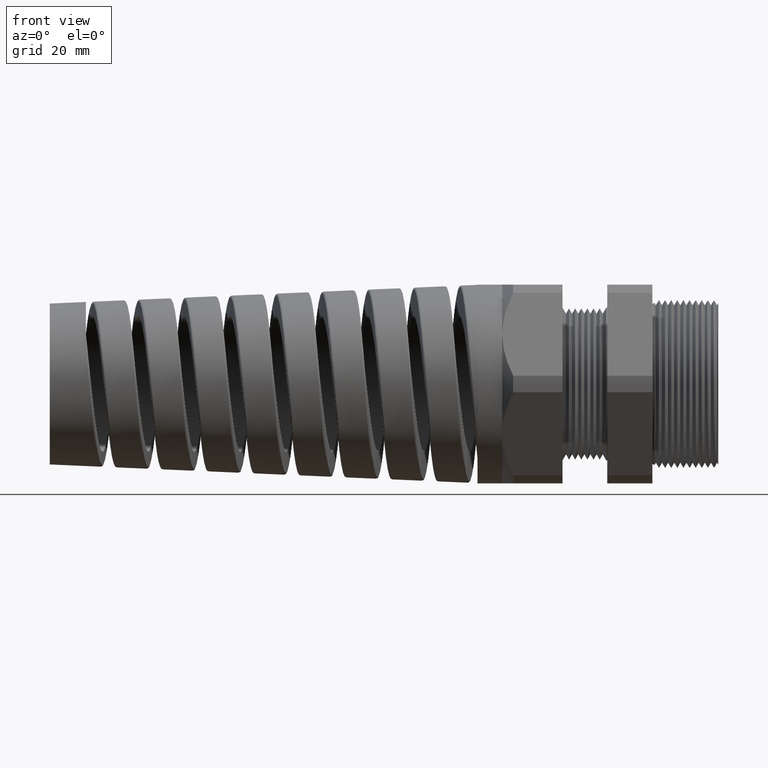
[diagram: clean part render]
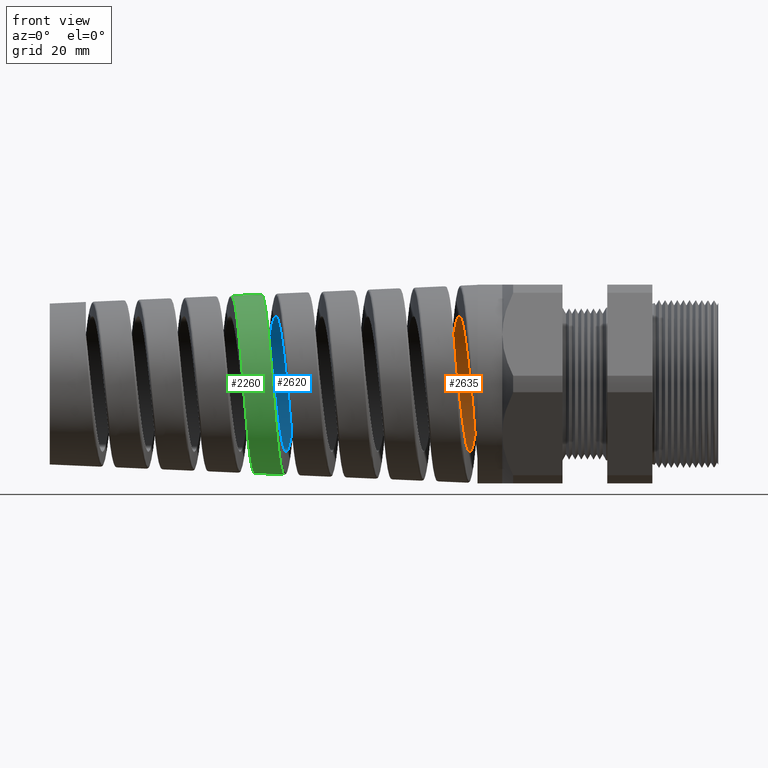
[diagram: same view with three faces highlighted in distinct colors, each labeled with its STEP entity id]
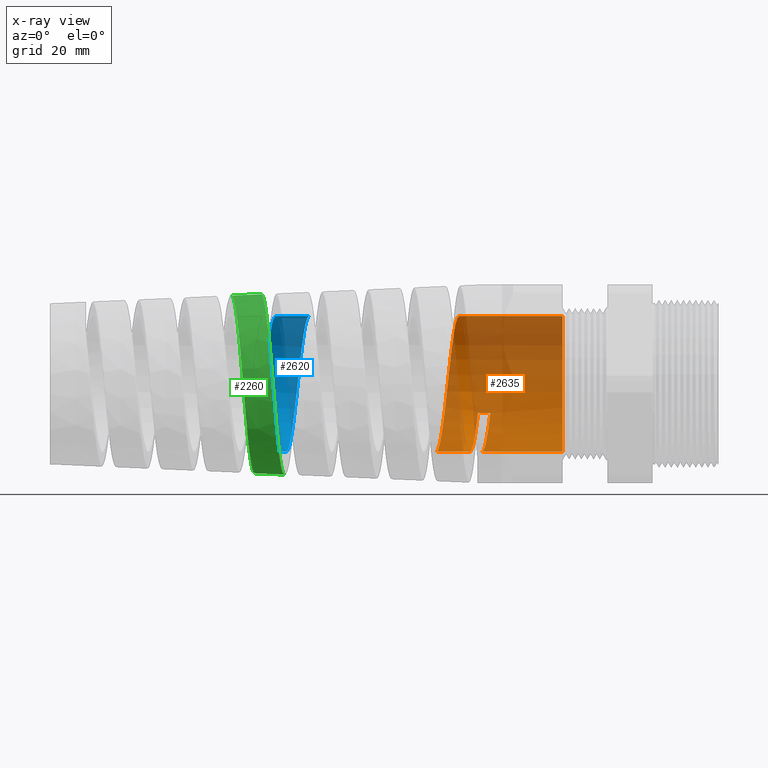
[diagram: x-ray of the same camera — body ghosted, the three highlighted faces saturated]
A machine part, front view with three faces highlighted in distinct colors.
The next image is the same camera in x-ray (body ghosted, the three faces saturated) — at least one of them is partly hidden behind the body in this view.
Their STEP definitions:

[orange] entity #2635 — the highlighted cylindrical surface (partial cylindrical patch) has radius 11.2776 mm, axis along (1, 0, 0).
#39 = ORIENTED_EDGE ( 'NONE', *, *, #1768, .F. ) ;
#44 = VERTEX_POINT ( 'NONE', #1912 ) ;
#96 = ORIENTED_EDGE ( 'NONE', *, *, #2258, .T. ) ;
#1768 = EDGE_CURVE ( 'NONE', #2556, #44, #12890, .T. ) ;
#1912 = CARTESIAN_POINT ( 'NONE',  ( -1.450214128774767900, 0.4008678882953168300, -0.1908950919580003300 ) ) ;
#2212 = EDGE_CURVE ( 'NONE', #10805, #3012, #13148, .T. ) ;
#2213 = ORIENTED_EDGE ( 'NONE', *, *, #10843, .T. ) ;
#2218 = EDGE_CURVE ( 'NONE', #10708, #44, #13175, .T. ) ;
#2219 = ORIENTED_EDGE ( 'NONE', *, *, #2218, .T. ) ;
#2220 = ORIENTED_EDGE ( 'NONE', *, *, #2212, .T. ) ;
#2258 = EDGE_CURVE ( 'NONE', #10693, #10695, #13497, .T. ) ;
#2549 = ORIENTED_EDGE ( 'NONE', *, *, #10879, .T. ) ;
#2556 = VERTEX_POINT ( 'NONE', #13734 ) ;
#2563 = EDGE_CURVE ( 'NONE', #2556, #10809, #13889, .T. ) ;
#2565 = ORIENTED_EDGE ( 'NONE', *, *, #2563, .T. ) ;
#2609 = ORIENTED_EDGE ( 'NONE', *, *, #10793, .F. ) ;
#2626 = EDGE_LOOP ( 'NONE', ( #2609, #2220, #2213, #2219, #39, #2565, #2549, #96 ) ) ;
#2635 = ADVANCED_FACE ( 'NONE', ( #14393 ), #14421, .F. ) ;
#3012 = VERTEX_POINT ( 'NONE', #15225 ) ;
#10693 = VERTEX_POINT ( 'NONE', #15638 ) ;
#10695 = VERTEX_POINT ( 'NONE', #15636 ) ;
#10708 = VERTEX_POINT ( 'NONE', #15635 ) ;
#10793 = EDGE_CURVE ( 'NONE', #10805, #10695, #15634, .T. ) ;
#10805 = VERTEX_POINT ( 'NONE', #15630 ) ;
#10809 = VERTEX_POINT ( 'NONE', #15629 ) ;
#10843 = EDGE_CURVE ( 'NONE', #3012, #10708, #15741, .T. ) ;
#10879 = EDGE_CURVE ( 'NONE', #10809, #10693, #15835, .T. ) ;
#12882 = DIRECTION ( 'NONE',  ( -1.000000000000000000, 0.0000000000000000000, 0.0000000000000000000 ) ) ;
#12883 = VECTOR ( 'NONE', #12882, 39.37007874015748100 ) ;
#12884 = CARTESIAN_POINT ( 'NONE',  ( 0.09602717987635048200, 0.4008678882953167800, -0.1908950919580003300 ) ) ;
#12890 = LINE ( 'NONE', #12884, #12883 ) ;
#13134 = CARTESIAN_POINT ( 'NONE',  ( -1.612520021855103700, 0.3242480722881987400, 0.3036643450278891400 ) ) ;
#13135 = CARTESIAN_POINT ( 'NONE',  ( -1.607814867478654500, 0.2932971590798989500, 0.3346104657224277500 ) ) ;
#13136 = CARTESIAN_POINT ( 'NONE',  ( -1.604718870615752700, 0.2709152607387106400, 0.3529600228726187400 ) ) ;
#13137 = CARTESIAN_POINT ( 'NONE',  ( -1.600046788817570900, 0.2347809175219115500, 0.3771258209529149700 ) ) ;
#13138 = CARTESIAN_POINT ( 'NONE',  ( -1.598484756384663800, 0.2223062251569446500, 0.3846174108148201500 ) ) ;
#13139 = CARTESIAN_POINT ( 'NONE',  ( -1.595335588440577300, 0.1964697569181142700, 0.3984347437937153000 ) ) ;
#13140 = CARTESIAN_POINT ( 'NONE',  ( -1.593766386670960200, 0.1832532842614596500, 0.4046785067326612600 ) ) ;
#13141 = CARTESIAN_POINT ( 'NONE',  ( -1.589087890332173900, 0.1430419444021059100, 0.4213274761484429000 ) ) ;
#13142 = CARTESIAN_POINT ( 'NONE',  ( -1.585992798235615000, 0.1153618666189196300, 0.4297388583966457200 ) ) ;
#13143 = CARTESIAN_POINT ( 'NONE',  ( -1.581298442812024900, 0.07252803293098682200, 0.4382780465761718100 ) ) ;
#13144 = CARTESIAN_POINT ( 'NONE',  ( -1.579717311073812500, 0.05795849378920949600, 0.4404420401640562500 ) ) ;
#13145 = CARTESIAN_POINT ( 'NONE',  ( -1.576584669391930300, 0.02895205415614242000, 0.4432946608141471500 ) ) ;
#13146 = CARTESIAN_POINT ( 'NONE',  ( -1.575027740642945800, 0.01446683099804043200, 0.4439999999999999500 ) ) ;
#13147 = CARTESIAN_POINT ( 'NONE',  ( -1.573472728373935400, -5.053385224217624300E-015, 0.4439999999999998400 ) ) ;
#13148 = B_SPLINE_CURVE_WITH_KNOTS ( 'NONE', 3,
 ( #13147, #13146, #13145, #13144, #13143, #13142, #13141, #13140, #13139, #13138, #13137, #13136, #13135, #13134, #13216, #13215, #13214, #13213, #13212, #13211, #13210, #13209, #13208, #13207, #13206, #13205, #13204, #13203, #13202, #13201, #13200, #13199, #13198, #13197, #13196, #13195, #13194, #13193, #13192, #13191, #13190, #13189, #13188, #13187, #13186, #13185, #13184, #13183, #13182, #13181 ),
 .UNSPECIFIED., .F., .F.,
 ( 4, 2, 2, 2, 2, 2, 2, 2, 1, 2, 2, 2, 2, 2, 2, 2, 2, 2, 2, 1, 2, 2, 2, 2, 2, 4 ),
 ( 0.04818164035617673900, 0.04928998018858565800, 0.05039832002099457800, 0.05261499968581242300, 0.05372333951822134300, 0.05483167935063026900, 0.05704835901544811500, 0.05815669884785703400, 0.05926503868026596100, 0.06037337851267488700, 0.06148171834508381300, 0.06369839800990166600, 0.06480673784231058600, 0.06591507767471950500, 0.06813175733953735800, 0.06924009717194627700, 0.07034843700435519700, 0.07256511666917303500, 0.07367345650158195500, 0.07478179633399087400, 0.07589013616639979400, 0.07699847599880871300, 0.07921515566362655200, 0.08032349549603548500, 0.08143183532844441900, 0.08364851499326225700 ),
 .UNSPECIFIED. ) ;
#13175 = B_SPLINE_CURVE_WITH_KNOTS ( 'NONE', 3,
 ( #13243, #13242, #13241, #13239, #13238, #13237, #13236, #13235, #13234, #13233, #13232, #13231, #13230, #13229, #13228, #13227, #13226, #13225, #13224, #13223 ),
 .UNSPECIFIED., .F., .F.,
 ( 4, 2, 2, 2, 2, 2, 2, 2, 2, 4 ),
 ( 0.5926384102037671700, 0.5942255240878962000, 0.5958126379720252200, 0.5973997518561542400, 0.5989868657402832600, 0.6005739796244122800, 0.6013675365664767900, 0.6021610935085413000, 0.6037482073926703200, 0.6053353212767993400 ),
 .UNSPECIFIED. ) ;
#13181 = CARTESIAN_POINT ( 'NONE',  ( -1.723403743764304400, -1.818386320782775100E-015, -0.4439999999999999500 ) ) ;
#13182 = CARTESIAN_POINT ( 'NONE',  ( -1.720275013297372800, 0.02911065007823212100, -0.4440000000000001700 ) ) ;
#13183 = CARTESIAN_POINT ( 'NONE',  ( -1.717180838819372600, 0.05790025423545364800, -0.4411640161780912000 ) ) ;
#13184 = CARTESIAN_POINT ( 'NONE',  ( -1.712501508010944900, 0.1005979908713707000, -0.4326968643119243900 ) ) ;
#13185 = CARTESIAN_POINT ( 'NONE',  ( -1.710930710600582400, 0.1147913120656879800, -0.4291543034642654200 ) ) ;
#13186 = CARTESIAN_POINT ( 'NONE',  ( -1.707782271011913300, 0.1428207534707584800, -0.4206574543327453700 ) ) ;
#13187 = CARTESIAN_POINT ( 'NONE',  ( -1.706220481874340100, 0.1565161955107908800, -0.4157506338159681600 ) ) ;
#13188 = CARTESIAN_POINT ( 'NONE',  ( -1.701548930619740700, 0.1966727435896103400, -0.3991183631845832100 ) ) ;
#13189 = CARTESIAN_POINT ( 'NONE',  ( -1.698453091462799300, 0.2222127398167272300, -0.3854988694995022400 ) ) ;
#13190 = CARTESIAN_POINT ( 'NONE',  ( -1.693747212036710300, 0.2586270107969952900, -0.3611939081944398100 ) ) ;
#13191 = CARTESIAN_POINT ( 'NONE',  ( -1.692167099646875000, 0.2704469543935691900, -0.3524285797545218000 ) ) ;
#13192 = CARTESIAN_POINT ( 'NONE',  ( -1.689040625948517300, 0.2929277178099528600, -0.3339772613625054400 ) ) ;
#13193 = CARTESIAN_POINT ( 'NONE',  ( -1.685930344130881700, 0.3143889930720742400, -0.3145187440466212800 ) ) ;
#13194 = CARTESIAN_POINT ( 'NONE',  ( -1.682822824818445100, 0.3338421061056913200, -0.2930806891213287300 ) ) ;
#13195 = CARTESIAN_POINT ( 'NONE',  ( -1.679701590504480500, 0.3522778779241365600, -0.2706420862877458300 ) ) ;
#13196 = CARTESIAN_POINT ( 'NONE',  ( -1.678126831901377100, 0.3610242439487603100, -0.2588655724257431500 ) ) ;
#13197 = CARTESIAN_POINT ( 'NONE',  ( -1.673410863485433200, 0.3854030646191135000, -0.2223871286889643500 ) ) ;
#13198 = CARTESIAN_POINT ( 'NONE',  ( -1.670312066571415500, 0.3990372179928460300, -0.1968339565462418900 ) ) ;
#13199 = CARTESIAN_POINT ( 'NONE',  ( -1.665643760140973900, 0.4156746658722902900, -0.1567167798936649800 ) ) ;
#13200 = CARTESIAN_POINT ( 'NONE',  ( -1.664084415851368300, 0.4205803124630142500, -0.1430443413479950700 ) ) ;
#13201 = CARTESIAN_POINT ( 'NONE',  ( -1.660943705093477000, 0.4290747442425225100, -0.1150840852437134100 ) ) ;
#13202 = CARTESIAN_POINT ( 'NONE',  ( -1.659366469435123300, 0.4326432324569228200, -0.1008311862639436200 ) ) ;
#13203 = CARTESIAN_POINT ( 'NONE',  ( -1.654681558629588000, 0.4411428540113433400, -0.05808064403399248300 ) ) ;
#13204 = CARTESIAN_POINT ( 'NONE',  ( -1.651586951895867900, 0.4439848126938398800, -0.02929530691756050000 ) ) ;
#13205 = CARTESIAN_POINT ( 'NONE',  ( -1.646900520632292000, 0.4440075034456812400, 0.01430101784761663100 ) ) ;
#13206 = CARTESIAN_POINT ( 'NONE',  ( -1.645322448249408400, 0.4432937317733018400, 0.02898308221460486200 ) ) ;
#13207 = CARTESIAN_POINT ( 'NONE',  ( -1.642182640002920500, 0.4404303643435934500, 0.05805554106481248400 ) ) ;
#13208 = CARTESIAN_POINT ( 'NONE',  ( -1.640623669476138000, 0.4382930764918801000, 0.07242041768895417200 ) ) ;
#13209 = CARTESIAN_POINT ( 'NONE',  ( -1.635956223389383000, 0.4298212669452323700, 0.1150123022873376500 ) ) ;
#13210 = CARTESIAN_POINT ( 'NONE',  ( -1.632857586827117800, 0.4214463317302423700, 0.1427413835421985600 ) ) ;
#13211 = CARTESIAN_POINT ( 'NONE',  ( -1.628139460101380600, 0.4046639625738920300, 0.1832951326961531900 ) ) ;
#13212 = CARTESIAN_POINT ( 'NONE',  ( -1.626565503125180000, 0.3983923426030306400, 0.1965459313265082700 ) ) ;
#13213 = CARTESIAN_POINT ( 'NONE',  ( -1.623444681950039400, 0.3847020481216760200, 0.2221510655763840000 ) ) ;
#13214 = CARTESIAN_POINT ( 'NONE',  ( -1.620337422880650900, 0.3698174345765944900, 0.2469768601816167400 ) ) ;
#13215 = CARTESIAN_POINT ( 'NONE',  ( -1.617227116027112800, 0.3525729499887939600, 0.2702588956382321900 ) ) ;
#13216 = CARTESIAN_POINT ( 'NONE',  ( -1.614100340259967400, 0.3341292449606022000, 0.2927545104647499300 ) ) ;
#13223 = CARTESIAN_POINT ( 'NONE',  ( -1.450214128774767900, 0.4008678882953168300, -0.1908950919580003300 ) ) ;
#13224 = CARTESIAN_POINT ( 'NONE',  ( -1.452476029716217800, 0.3918285777183655400, -0.2098770851850718400 ) ) ;
#13225 = CARTESIAN_POINT ( 'NONE',  ( -1.454733145878181100, 0.3814550029482889900, -0.2281662052015446000 ) ) ;
#13226 = CARTESIAN_POINT ( 'NONE',  ( -1.459204313388243700, 0.3584791146987841800, -0.2627935706883415800 ) ) ;
#13227 = CARTESIAN_POINT ( 'NONE',  ( -1.461428502098050400, 0.3458383668288905200, -0.2792192801168291200 ) ) ;
#13228 = CARTESIAN_POINT ( 'NONE',  ( -1.464780741570722100, 0.3251511434820982300, -0.3025237668055897300 ) ) ;
#13229 = CARTESIAN_POINT ( 'NONE',  ( -1.465900818263168500, 0.3179666948191628400, -0.3100687921202201500 ) ) ;
#13230 = CARTESIAN_POINT ( 'NONE',  ( -1.468152048315014100, 0.3030080804618621700, -0.3247022913931046900 ) ) ;
#13231 = CARTESIAN_POINT ( 'NONE',  ( -1.469285469054156600, 0.2952159563655750700, -0.3318022386608508500 ) ) ;
#13232 = CARTESIAN_POINT ( 'NONE',  ( -1.472658050947411400, 0.2713124583380514000, -0.3520827968579777200 ) ) ;
#13233 = CARTESIAN_POINT ( 'NONE',  ( -1.474886779980212800, 0.2545708743153743400, -0.3643614797429897700 ) ) ;
#13234 = CARTESIAN_POINT ( 'NONE',  ( -1.479347002152319200, 0.2195187579007095400, -0.3864933801501974100 ) ) ;
#13235 = CARTESIAN_POINT ( 'NONE',  ( -1.481578312756405300, 0.2012082776434165600, -0.3963467145761678200 ) ) ;
#13236 = CARTESIAN_POINT ( 'NONE',  ( -1.486088690587666500, 0.1629684149105667700, -0.4135417571286966700 ) ) ;
#13237 = CARTESIAN_POINT ( 'NONE',  ( -1.488338894605446100, 0.1432805890245423300, -0.4207578420531537000 ) ) ;
#13238 = CARTESIAN_POINT ( 'NONE',  ( -1.492803338261440500, 0.1034176434774275700, -0.4322861087960405700 ) ) ;
#13239 = CARTESIAN_POINT ( 'NONE',  ( -1.495028878360932500, 0.08314819521392857700, -0.4366413705878286500 ) ) ;
#13241 = CARTESIAN_POINT ( 'NONE',  ( -1.499508253801742400, 0.04193111322765522000, -0.4425054695929088700 ) ) ;
#13242 = CARTESIAN_POINT ( 'NONE',  ( -1.501777488994422600, 0.02083813264710891000, -0.4439999999999998400 ) ) ;
#13243 = CARTESIAN_POINT ( 'NONE',  ( -1.504019138133454000, 4.388030839823222900E-015, -0.4440000000000001700 ) ) ;
#13497 = CIRCLE ( 'NONE', #13525, 0.4439999999999999500 ) ;
#13522 = DIRECTION ( 'NONE',  ( 0.0000000000000000000, 0.0000000000000000000, -1.000000000000000000 ) ) ;
#13523 = DIRECTION ( 'NONE',  ( 1.000000000000000000, 0.0000000000000000000, 0.0000000000000000000 ) ) ;
#13524 = CARTESIAN_POINT ( 'NONE',  ( -0.8981889763779525900, 0.0000000000000000000, 0.0000000000000000000 ) ) ;
#13525 = AXIS2_PLACEMENT_3D ( 'NONE', #13524, #13523, #13522 ) ;
#13734 = CARTESIAN_POINT ( 'NONE',  ( -1.369785871225233100, 0.4008678882953167800, -0.1908950919580003300 ) ) ;
#13876 = CARTESIAN_POINT ( 'NONE',  ( -1.392191116335109300, 0.2714440756941466900, -0.3519761612723856200 ) ) ;
#13877 = CARTESIAN_POINT ( 'NONE',  ( -1.387717148026291500, 0.3031772814397465900, -0.3250425208373493600 ) ) ;
#13878 = CARTESIAN_POINT ( 'NONE',  ( -1.385449228546004500, 0.3182951094479965500, -0.3102571036114231700 ) ) ;
#13879 = CARTESIAN_POINT ( 'NONE',  ( -1.378721518563753600, 0.3598300405711323800, -0.2634375259184297800 ) ) ;
#13886 = CARTESIAN_POINT ( 'NONE',  ( -1.374307380194770500, 0.3827819045685269000, -0.2288745393599107800 ) ) ;
#13887 = CARTESIAN_POINT ( 'NONE',  ( -1.369785871225233100, 0.4008678882953167800, -0.1908950919580003300 ) ) ;
#13889 = B_SPLINE_CURVE_WITH_KNOTS ( 'NONE', 3,
 ( #13887, #13886, #13879, #13878, #13877, #13876, #13954, #13953, #13952, #13951, #13950, #13949, #13948, #13947, #13946, #13945, #13944, #13943, #13942, #13941 ),
 .UNSPECIFIED., .F., .F.,
 ( 4, 2, 2, 2, 2, 2, 2, 2, 2, 4 ),
 ( 0.0000000000000000000, 0.003178123135613625900, 0.004767184703420438900, 0.006356246271227251900, 0.007150777055130657500, 0.007945307839034064900, 0.009534369406840874400, 0.01112343097464768400, 0.01191796175855108800, 0.01271249254245449200 ),
 .UNSPECIFIED. ) ;
#13941 = CARTESIAN_POINT ( 'NONE',  ( -1.423540602391710100, 1.155622923469864400E-012, -0.4440000000000001700 ) ) ;
#13942 = CARTESIAN_POINT ( 'NONE',  ( -1.422424148056296500, 0.01038649763750713700, -0.4439999999999732500 ) ) ;
#13943 = CARTESIAN_POINT ( 'NONE',  ( -1.421305404574351200, 0.02079509048912022900, -0.4436360077330351300 ) ) ;
#13944 = CARTESIAN_POINT ( 'NONE',  ( -1.419057635734027000, 0.04165676073585768100, -0.4421651924685526300 ) ) ;
#13945 = CARTESIAN_POINT ( 'NONE',  ( -1.417924766947450000, 0.05214502300986559300, -0.4410514575047869100 ) ) ;
#13946 = CARTESIAN_POINT ( 'NONE',  ( -1.414550885338690300, 0.08322387823493891700, -0.4366322851768073600 ) ) ;
#13947 = CARTESIAN_POINT ( 'NONE',  ( -1.412322978663533800, 0.1035375418656985400, -0.4322567517434992000 ) ) ;
#13948 = CARTESIAN_POINT ( 'NONE',  ( -1.407865399090338300, 0.1433713875686111200, -0.4207262378674326800 ) ) ;
#13949 = CARTESIAN_POINT ( 'NONE',  ( -1.405635723304936400, 0.1628915830611144300, -0.4135713055821908500 ) ) ;
#13950 = CARTESIAN_POINT ( 'NONE',  ( -1.402257836021539900, 0.1915548081490766300, -0.4006900031611080900 ) ) ;
#13951 = CARTESIAN_POINT ( 'NONE',  ( -1.401125600186313300, 0.2010095926081327300, -0.3960306515723440200 ) ) ;
#13952 = CARTESIAN_POINT ( 'NONE',  ( -1.398879981928319300, 0.2194129255442873500, -0.3861387074736225600 ) ) ;
#13953 = CARTESIAN_POINT ( 'NONE',  ( -1.397762087509289500, 0.2284002511153724900, -0.3808898955769230400 ) ) ;
#13954 = CARTESIAN_POINT ( 'NONE',  ( -1.394414572857527200, 0.2547302875876748500, -0.3642521511730018600 ) ) ;
#14393 = FACE_OUTER_BOUND ( 'NONE', #2626, .T. ) ;
#14417 = DIRECTION ( 'NONE',  ( 0.0000000000000000000, 0.0000000000000000000, -1.000000000000000000 ) ) ;
#14418 = DIRECTION ( 'NONE',  ( 1.000000000000000000, 0.0000000000000000000, 0.0000000000000000000 ) ) ;
#14419 = CARTESIAN_POINT ( 'NONE',  ( 0.09602717987635048200, 0.0000000000000000000, 0.0000000000000000000 ) ) ;
#14420 = AXIS2_PLACEMENT_3D ( 'NONE', #14419, #14418, #14417 ) ;
#14421 = CYLINDRICAL_SURFACE ( 'NONE', #14420, 0.4439999999999999500 ) ;
#15225 = CARTESIAN_POINT ( 'NONE',  ( -1.723403743764304400, -1.818386320782775100E-015, -0.4439999999999999500 ) ) ;
#15629 = CARTESIAN_POINT ( 'NONE',  ( -1.423540602391710100, 1.155622923469864400E-012, -0.4440000000000001700 ) ) ;
#15630 = CARTESIAN_POINT ( 'NONE',  ( -1.573472728373935400, -5.053385224217624300E-015, 0.4439999999999998400 ) ) ;
#15631 = DIRECTION ( 'NONE',  ( 1.000000000000000000, 0.0000000000000000000, 0.0000000000000000000 ) ) ;
#15632 = VECTOR ( 'NONE', #15631, 39.37007874015748100 ) ;
#15633 = CARTESIAN_POINT ( 'NONE',  ( 0.09602717987635048200, 5.437431788214247900E-017, 0.4439999999999999500 ) ) ;
#15634 = LINE ( 'NONE', #15633, #15632 ) ;
#15635 = CARTESIAN_POINT ( 'NONE',  ( -1.504019138133454000, 4.388030839823222900E-015, -0.4440000000000001700 ) ) ;
#15636 = CARTESIAN_POINT ( 'NONE',  ( -0.8981889763779525900, 5.437431788214247900E-017, 0.4439999999999999500 ) ) ;
#15638 = CARTESIAN_POINT ( 'NONE',  ( -0.8981889763779525900, 0.0000000000000000000, -0.4439999999999999500 ) ) ;
#15733 = DIRECTION ( 'NONE',  ( 1.000000000000000000, 0.0000000000000000000, 0.0000000000000000000 ) ) ;
#15734 = VECTOR ( 'NONE', #15733, 39.37007874015748100 ) ;
#15735 = CARTESIAN_POINT ( 'NONE',  ( 0.09602717987635048200, 0.0000000000000000000, -0.4439999999999999500 ) ) ;
#15741 = LINE ( 'NONE', #15735, #15734 ) ;
#15832 = DIRECTION ( 'NONE',  ( 1.000000000000000000, 0.0000000000000000000, 0.0000000000000000000 ) ) ;
#15833 = VECTOR ( 'NONE', #15832, 39.37007874015748100 ) ;
#15834 = CARTESIAN_POINT ( 'NONE',  ( 0.09602717987635048200, 0.0000000000000000000, -0.4439999999999999500 ) ) ;
#15835 = LINE ( 'NONE', #15834, #15833 ) ;

[blue] entity #2620 — the highlighted cylindrical surface (partial cylindrical patch) has radius 11.2776 mm, axis along (1, 0, 0).
#2602 = EDGE_LOOP ( 'NONE', ( #2613, #2618, #2617, #2615 ) ) ;
#2613 = ORIENTED_EDGE ( 'NONE', *, *, #2984, .F. ) ;
#2614 = EDGE_CURVE ( 'NONE', #2832, #2856, #14158, .T. ) ;
#2615 = ORIENTED_EDGE ( 'NONE', *, *, #2616, .T. ) ;
#2616 = EDGE_CURVE ( 'NONE', #2953, #2994, #14195, .T. ) ;
#2617 = ORIENTED_EDGE ( 'NONE', *, *, #2881, .T. ) ;
#2618 = ORIENTED_EDGE ( 'NONE', *, *, #2614, .T. ) ;
#2620 = ADVANCED_FACE ( 'NONE', ( #14223 ), #14251, .F. ) ;
#2832 = VERTEX_POINT ( 'NONE', #14810 ) ;
#2856 = VERTEX_POINT ( 'NONE', #14808 ) ;
#2881 = EDGE_CURVE ( 'NONE', #2856, #2953, #14807, .T. ) ;
#2953 = VERTEX_POINT ( 'NONE', #14883 ) ;
#2984 = EDGE_CURVE ( 'NONE', #2832, #2994, #15006, .T. ) ;
#2994 = VERTEX_POINT ( 'NONE', #15022 ) ;
#14114 = CARTESIAN_POINT ( 'NONE',  ( -2.911950232264677800, 0.1006227902081838500, -0.4326903075784466200 ) ) ;
#14115 = CARTESIAN_POINT ( 'NONE',  ( -2.910388467622126600, 0.1147348782574745100, -0.4291692457914926300 ) ) ;
#14116 = CARTESIAN_POINT ( 'NONE',  ( -2.907240985229683400, 0.1427571736584514500, -0.4206788836999628100 ) ) ;
#14117 = CARTESIAN_POINT ( 'NONE',  ( -2.905669740164085600, 0.1565361601518110200, -0.4157439061988609200 ) ) ;
#14118 = CARTESIAN_POINT ( 'NONE',  ( -2.900990910552462100, 0.1967537697442287000, -0.3990817134343284100 ) ) ;
#14119 = CARTESIAN_POINT ( 'NONE',  ( -2.897896911508041700, 0.2222717876811627900, -0.3854585511246246300 ) ) ;
#14120 = CARTESIAN_POINT ( 'NONE',  ( -2.893204417430749000, 0.2585831395146259700, -0.3612236433530869300 ) ) ;
#14121 = CARTESIAN_POINT ( 'NONE',  ( -2.891623184172496000, 0.2704137350003387200, -0.3524556226914586900 ) ) ;
#14122 = CARTESIAN_POINT ( 'NONE',  ( -2.888488639069346100, 0.2929528513334888100, -0.3339568549067921700 ) ) ;
#14123 = CARTESIAN_POINT ( 'NONE',  ( -2.886931267189675000, 0.3036974468377988700, -0.3242116162247657400 ) ) ;
#14124 = CARTESIAN_POINT ( 'NONE',  ( -2.882266208343298600, 0.3343904852214996100, -0.2935238467941230800 ) ) ;
#14125 = CARTESIAN_POINT ( 'NONE',  ( -2.879165970841523600, 0.3528130864717232700, -0.2711432426676441100 ) ) ;
#14126 = CARTESIAN_POINT ( 'NONE',  ( -2.872862673697413900, 0.3854055330618195700, -0.2223922370843087500 ) ) ;
#14127 = CARTESIAN_POINT ( 'NONE',  ( -2.869756090910215600, 0.3990665518643851100, -0.1967709908672625200 ) ) ;
#14128 = CARTESIAN_POINT ( 'NONE',  ( -2.865091638876823500, 0.4156862528314662600, -0.1566849486162847400 ) ) ;
#14129 = CARTESIAN_POINT ( 'NONE',  ( -2.863535269055178300, 0.4205809244104736800, -0.1430380001639315300 ) ) ;
#14130 = CARTESIAN_POINT ( 'NONE',  ( -2.860404133305722400, 0.4290518699492376100, -0.1151636937664303200 ) ) ;
#14131 = CARTESIAN_POINT ( 'NONE',  ( -2.858822927630838300, 0.4326339150854196500, -0.1008761664248833800 ) ) ;
#14132 = CARTESIAN_POINT ( 'NONE',  ( -2.854126796079530700, 0.4411549406590804000, -0.05802361649327145200 ) ) ;
#14133 = CARTESIAN_POINT ( 'NONE',  ( -2.851031637988243400, 0.4439851371566156400, -0.02923215587331994300 ) ) ;
#14134 = CARTESIAN_POINT ( 'NONE',  ( -2.844795720676327000, 0.4440147471686608500, 0.02877890285836243900 ) ) ;
#14135 = CARTESIAN_POINT ( 'NONE',  ( -2.841632183523902500, 0.4411206201798484300, 0.05821276986950265500 ) ) ;
#14136 = CARTESIAN_POINT ( 'NONE',  ( -2.835401565667587100, 0.4298085812940811200, 0.1150682908958981400 ) ) ;
#14137 = CARTESIAN_POINT ( 'NONE',  ( -2.832305909379625200, 0.4214311189317851400, 0.1427668116755586600 ) ) ;
#14138 = CARTESIAN_POINT ( 'NONE',  ( -2.827603154229959800, 0.4047093598569401200, 0.1831910796796908900 ) ) ;
#14139 = CARTESIAN_POINT ( 'NONE',  ( -2.826022360917084300, 0.3984153000601372600, 0.1965017494742697100 ) ) ;
#14140 = CARTESIAN_POINT ( 'NONE',  ( -2.822894700564235700, 0.3846959621402534200, 0.2221636909610625600 ) ) ;
#14141 = CARTESIAN_POINT ( 'NONE',  ( -2.819784117173943700, 0.3697923337429591700, 0.2470143657876365500 ) ) ;
#14142 = CARTESIAN_POINT ( 'NONE',  ( -2.816677210227678300, 0.3525640924514849600, 0.2702687161070845800 ) ) ;
#14143 = CARTESIAN_POINT ( 'NONE',  ( -2.813557361676057400, 0.3341622642169020400, 0.2927152188830375300 ) ) ;
#14144 = CARTESIAN_POINT ( 'NONE',  ( -2.811985170964679300, 0.3243360966280171000, 0.3035726054438143700 ) ) ;
#14145 = CARTESIAN_POINT ( 'NONE',  ( -2.807264745985477400, 0.2932903327788744500, 0.3346247183126695400 ) ) ;
#14146 = CARTESIAN_POINT ( 'NONE',  ( -2.804165858958741700, 0.2708804545958886100, 0.3529838677083986200 ) ) ;
#14147 = CARTESIAN_POINT ( 'NONE',  ( -2.799499416749475800, 0.2347893002429987900, 0.3771199310266125600 ) ) ;
#14148 = CARTESIAN_POINT ( 'NONE',  ( -2.797940965394816200, 0.2223432166150338700, 0.3845940989037502400 ) ) ;
#14149 = CARTESIAN_POINT ( 'NONE',  ( -2.794802689347673000, 0.1965991305891161600, 0.3983690609697383400 ) ) ;
#14150 = CARTESIAN_POINT ( 'NONE',  ( -2.793223736669640600, 0.1833032164012345100, 0.4046569347115516700 ) ) ;
#14151 = CARTESIAN_POINT ( 'NONE',  ( -2.788535829037311200, 0.1430122847549671900, 0.4213415505524127900 ) ) ;
#14152 = CARTESIAN_POINT ( 'NONE',  ( -2.785441400004690800, 0.1153347652869175800, 0.4297413666299996200 ) ) ;
#14153 = CARTESIAN_POINT ( 'NONE',  ( -2.780758415102495600, 0.07260536575498795200, 0.4382640738559191500 ) ) ;
#14154 = CARTESIAN_POINT ( 'NONE',  ( -2.779182555269361200, 0.05808524471522565100, 0.4404268132848689300 ) ) ;
#14155 = CARTESIAN_POINT ( 'NONE',  ( -2.776040361722483600, 0.02899098897484885000, 0.4432935777474704700 ) ) ;
#14156 = CARTESIAN_POINT ( 'NONE',  ( -2.774480485239068100, 0.01447834582893187500, 0.4440000000000018900 ) ) ;
#14157 = CARTESIAN_POINT ( 'NONE',  ( -2.772924235818257500, -6.893994488151984300E-014, 0.4439999999999999500 ) ) ;
#14158 = B_SPLINE_CURVE_WITH_KNOTS ( 'NONE', 3,
 ( #14157, #14156, #14155, #14154, #14153, #14152, #14151, #14150, #14149, #14148, #14147, #14146, #14145, #14144, #14143, #14142, #14141, #14140, #14139, #14138, #14137, #14136, #14135, #14134, #14133, #14132, #14131, #14130, #14129, #14128, #14127, #14126, #14125, #14124, #14123, #14122, #14121, #14120, #14119, #14118, #14117, #14116, #14115, #14114, #14198, #14197, #14196 ),
 .UNSPECIFIED., .F., .F.,
 ( 4, 2, 2, 2, 2, 2, 2, 2, 1, 2, 2, 2, 2, 2, 2, 2, 2, 2, 2, 2, 2, 2, 2, 4 ),
 ( 0.3319018859143124100, 0.3330101689579805800, 0.3341184520016488000, 0.3363350180889851900, 0.3374433011326533600, 0.3385515841763215800, 0.3407681502636579800, 0.3418764333073261400, 0.3429847163509943700, 0.3440929993946625900, 0.3452012824383307600, 0.3474178485256671500, 0.3496344146130036000, 0.3518509807003399900, 0.3529592637440081600, 0.3540675467876763800, 0.3562841128750127700, 0.3585006789623491600, 0.3596089620060173900, 0.3607172450496856100, 0.3629338111370220000, 0.3640420941806901700, 0.3651503772243583900, 0.3673669433116947800 ),
 .UNSPECIFIED. ) ;
#14159 = CARTESIAN_POINT ( 'NONE',  ( -2.602948816809160300, 0.3771977597161854100, 0.2346713480425616200 ) ) ;
#14160 = CARTESIAN_POINT ( 'NONE',  ( -2.604530057369313300, 0.3847627737805067200, 0.2220475059215764900 ) ) ;
#14161 = CARTESIAN_POINT ( 'NONE',  ( -2.607658993697192300, 0.3984682293316552700, 0.1963938827625685300 ) ) ;
#14162 = CARTESIAN_POINT ( 'NONE',  ( -2.609215345062704000, 0.4046564713357158600, 0.1832982303709948200 ) ) ;
#14163 = CARTESIAN_POINT ( 'NONE',  ( -2.612326968034195800, 0.4157257213681332900, 0.1565797740576874700 ) ) ;
#14164 = CARTESIAN_POINT ( 'NONE',  ( -2.613882300289172000, 0.4206067112668738200, 0.1429569698961470300 ) ) ;
#14165 = CARTESIAN_POINT ( 'NONE',  ( -2.617006001567443000, 0.4290458790187950400, 0.1151795750192402000 ) ) ;
#14166 = CARTESIAN_POINT ( 'NONE',  ( -2.618581154874919800, 0.4326158534670245200, 0.1009627822249831200 ) ) ;
#14167 = CARTESIAN_POINT ( 'NONE',  ( -2.623301981986603700, 0.4411764691868119700, 0.05792377144405861500 ) ) ;
#14168 = CARTESIAN_POINT ( 'NONE',  ( -2.626402307393820300, 0.4439900376300773300, 0.02909891705527231300 ) ) ;
#14169 = CARTESIAN_POINT ( 'NONE',  ( -2.631073638623919700, 0.4440049419481679700, -0.01432084661396740600 ) ) ;
#14170 = CARTESIAN_POINT ( 'NONE',  ( -2.632634165653278100, 0.4433039838291916700, -0.02882474148318105200 ) ) ;
#14171 = CARTESIAN_POINT ( 'NONE',  ( -2.635777091062117000, 0.4404515707831862500, -0.05789388218998971900 ) ) ;
#14172 = CARTESIAN_POINT ( 'NONE',  ( -2.637356560364641400, 0.4382930296919369500, -0.07243161478339485400 ) ) ;
#14173 = CARTESIAN_POINT ( 'NONE',  ( -2.642046194412025300, 0.4297830153028609500, -0.1151826138957143800 ) ) ;
#14174 = CARTESIAN_POINT ( 'NONE',  ( -2.645142107439415900, 0.4213920266130631300, -0.1428596540766486100 ) ) ;
#14175 = CARTESIAN_POINT ( 'NONE',  ( -2.649830598825894800, 0.4047344711734259200, -0.1831312044899997300 ) ) ;
#14176 = CARTESIAN_POINT ( 'NONE',  ( -2.651409166573913900, 0.3984604676588563400, -0.1964145501665879600 ) ) ;
#14177 = CARTESIAN_POINT ( 'NONE',  ( -2.654553020095751200, 0.3846874074195460500, -0.2221823988908345200 ) ) ;
#14178 = CARTESIAN_POINT ( 'NONE',  ( -2.656113960150225900, 0.3772151318519509400, -0.2346364400317647900 ) ) ;
#14179 = CARTESIAN_POINT ( 'NONE',  ( -2.660786044842997200, 0.3530902710213444400, -0.2707421638118668900 ) ) ;
#14180 = CARTESIAN_POINT ( 'NONE',  ( -2.663885989332089200, 0.3347457606009394100, -0.2931493722603987200 ) ) ;
#14181 = CARTESIAN_POINT ( 'NONE',  ( -2.668605195280021400, 0.3037383317744659600, -0.3241802669582252700 ) ) ;
#14182 = CARTESIAN_POINT ( 'NONE',  ( -2.670181227415925100, 0.2928685905966669200, -0.3340280983655822300 ) ) ;
#14183 = CARTESIAN_POINT ( 'NONE',  ( -2.673305309488843000, 0.2704215813318506200, -0.3524470885193785600 ) ) ;
#14184 = CARTESIAN_POINT ( 'NONE',  ( -2.676416242971522600, 0.2471717996187487400, -0.3696868774585040900 ) ) ;
#14185 = CARTESIAN_POINT ( 'NONE',  ( -2.679528825385547800, 0.2223381367639918600, -0.3845947779062813300 ) ) ;
#14186 = CARTESIAN_POINT ( 'NONE',  ( -2.682657097081111400, 0.1967008447029917900, -0.3983166679233934900 ) ) ;
#14187 = CARTESIAN_POINT ( 'NONE',  ( -2.684237894688574300, 0.1834034905333150900, -0.4046134880406849800 ) ) ;
#14188 = CARTESIAN_POINT ( 'NONE',  ( -2.688946982181582800, 0.1429612866556684800, -0.4213665040018821900 ) ) ;
#14189 = CARTESIAN_POINT ( 'NONE',  ( -2.692045487960571700, 0.1152635418461172700, -0.4297553681639314500 ) ) ;
#14190 = CARTESIAN_POINT ( 'NONE',  ( -2.696721621821437600, 0.07264549903628612900, -0.4382561712125978000 ) ) ;
#14191 = CARTESIAN_POINT ( 'NONE',  ( -2.698284786795031900, 0.05825962736715528700, -0.4404045863025657900 ) ) ;
#14192 = CARTESIAN_POINT ( 'NONE',  ( -2.701435306973924500, 0.02911803467279313800, -0.4432860519733143300 ) ) ;
#14193 = CARTESIAN_POINT ( 'NONE',  ( -2.703006979492054800, 0.01450782708666742600, -0.4440000000000168300 ) ) ;
#14194 = CARTESIAN_POINT ( 'NONE',  ( -2.704567650367871500, -5.063458913694260100E-013, -0.4439999999999997800 ) ) ;
#14195 = B_SPLINE_CURVE_WITH_KNOTS ( 'NONE', 3,
 ( #14194, #14193, #14192, #14191, #14190, #14189, #14188, #14187, #14186, #14185, #14184, #14183, #14182, #14181, #14180, #14179, #14178, #14177, #14176, #14175, #14174, #14173, #14172, #14171, #14170, #14169, #14168, #14167, #14166, #14165, #14164, #14163, #14162, #14161, #14160, #14159, #14238, #14237, #14236, #14235, #14234, #14233, #14232, #14231, #14230, #14229, #14228, #14227, #14226, #14225, #14224 ),
 .UNSPECIFIED., .F., .F.,
 ( 4, 2, 2, 2, 2, 1, 2, 2, 2, 2, 2, 2, 2, 2, 2, 2, 2, 2, 2, 2, 2, 2, 2, 2, 2, 4 ),
 ( 0.3091514427114105400, 0.3102587081669102600, 0.3113659736224099700, 0.3135805045334094700, 0.3146877699889091800, 0.3157950354444089000, 0.3169023008999086200, 0.3180095663554083400, 0.3202240972664077700, 0.3213313627219074900, 0.3224386281774072000, 0.3246531590884066400, 0.3257604245439063600, 0.3268676899994060700, 0.3290822209104055100, 0.3301894863659052300, 0.3312967518214049400, 0.3324040172769046600, 0.3335112827324043800, 0.3357258136434038100, 0.3368330790989035300, 0.3379403445544032500, 0.3401548754654026800, 0.3412621409209023500, 0.3423694063764020600, 0.3445839372874015000 ),
 .UNSPECIFIED. ) ;
#14196 = CARTESIAN_POINT ( 'NONE',  ( -2.922855269525273000, 6.304699660690559600E-013, -0.4439999999999999500 ) ) ;
#14197 = CARTESIAN_POINT ( 'NONE',  ( -2.919717839077932800, 0.02919161599372300000, -0.4439999999999583700 ) ) ;
#14198 = CARTESIAN_POINT ( 'NONE',  ( -2.916621993555912800, 0.05799540440934845800, -0.4411484169685295200 ) ) ;
#14223 = FACE_OUTER_BOUND ( 'NONE', #2602, .T. ) ;
#14224 = CARTESIAN_POINT ( 'NONE',  ( -2.554499259192630300, -4.312819649747653400E-013, 0.4439999999999999500 ) ) ;
#14225 = CARTESIAN_POINT ( 'NONE',  ( -2.557655684111068300, 0.02933530202069721900, 0.4440000000000288700 ) ) ;
#14226 = CARTESIAN_POINT ( 'NONE',  ( -2.560759250515732200, 0.05818341242294374600, 0.4411208549137880500 ) ) ;
#14227 = CARTESIAN_POINT ( 'NONE',  ( -2.565427413279534700, 0.1007451179174518700, 0.4326611269181240800 ) ) ;
#14228 = CARTESIAN_POINT ( 'NONE',  ( -2.566985501710302900, 0.1148130880060852100, 0.4291459905797911400 ) ) ;
#14229 = CARTESIAN_POINT ( 'NONE',  ( -2.570120849515784600, 0.1427036036753005800, 0.4206946730186702500 ) ) ;
#14230 = CARTESIAN_POINT ( 'NONE',  ( -2.571703555936267500, 0.1565695510334827200, 0.4157329205371762000 ) ) ;
#14231 = CARTESIAN_POINT ( 'NONE',  ( -2.576402415513002500, 0.1969100448759433800, 0.3990112483924977400 ) ) ;
#14232 = CARTESIAN_POINT ( 'NONE',  ( -2.579499300741745500, 0.2224160040586317100, 0.3853683146716046500 ) ) ;
#14233 = CARTESIAN_POINT ( 'NONE',  ( -2.584180501931769400, 0.2586067064763130100, 0.3612048941653954700 ) ) ;
#14234 = CARTESIAN_POINT ( 'NONE',  ( -2.585750912198734800, 0.2703519844575962300, 0.3525057980197014400 ) ) ;
#14235 = CARTESIAN_POINT ( 'NONE',  ( -2.588902416167871300, 0.2929962846271394500, 0.3339217128794701500 ) ) ;
#14236 = CARTESIAN_POINT ( 'NONE',  ( -2.590465765147141700, 0.3037700866252006100, 0.3241444583321908500 ) ) ;
#14237 = CARTESIAN_POINT ( 'NONE',  ( -2.595142458034351800, 0.3344976806776772100, 0.2934056632109529100 ) ) ;
#14238 = CARTESIAN_POINT ( 'NONE',  ( -2.598241070034097400, 0.3528725641954697000, 0.2710500314447542000 ) ) ;
#14247 = DIRECTION ( 'NONE',  ( 0.0000000000000000000, 0.0000000000000000000, -1.000000000000000000 ) ) ;
#14248 = DIRECTION ( 'NONE',  ( 1.000000000000000000, 0.0000000000000000000, 0.0000000000000000000 ) ) ;
#14249 = CARTESIAN_POINT ( 'NONE',  ( 0.09602717987635048200, 0.0000000000000000000, 0.0000000000000000000 ) ) ;
#14250 = AXIS2_PLACEMENT_3D ( 'NONE', #14249, #14248, #14247 ) ;
#14251 = CYLINDRICAL_SURFACE ( 'NONE', #14250, 0.4439999999999999500 ) ;
#14807 = LINE ( 'NONE', #14890, #14889 ) ;
#14808 = CARTESIAN_POINT ( 'NONE',  ( -2.922855269525273000, 6.304699660690559600E-013, -0.4439999999999999500 ) ) ;
#14810 = CARTESIAN_POINT ( 'NONE',  ( -2.772924235818257500, -6.893994488151984300E-014, 0.4439999999999999500 ) ) ;
#14883 = CARTESIAN_POINT ( 'NONE',  ( -2.704567650367871500, -5.063458913694260100E-013, -0.4439999999999997800 ) ) ;
#14888 = DIRECTION ( 'NONE',  ( 1.000000000000000000, 0.0000000000000000000, 0.0000000000000000000 ) ) ;
#14889 = VECTOR ( 'NONE', #14888, 39.37007874015748100 ) ;
#14890 = CARTESIAN_POINT ( 'NONE',  ( 0.09602717987635048200, 0.0000000000000000000, -0.4439999999999999500 ) ) ;
#15003 = DIRECTION ( 'NONE',  ( 1.000000000000000000, 0.0000000000000000000, 0.0000000000000000000 ) ) ;
#15004 = VECTOR ( 'NONE', #15003, 39.37007874015748100 ) ;
#15005 = CARTESIAN_POINT ( 'NONE',  ( 0.09602717987635048200, 5.437431788214247900E-017, 0.4439999999999999500 ) ) ;
#15006 = LINE ( 'NONE', #15005, #15004 ) ;
#15022 = CARTESIAN_POINT ( 'NONE',  ( -2.554499259192630300, -4.312819649747653400E-013, 0.4439999999999999500 ) ) ;

[green] entity #2260 — the highlighted conical surface has half-angle 2.5 deg.
#1149 = EDGE_CURVE ( 'NONE', #1223, #1230, #11689, .T. ) ;
#1210 = VERTEX_POINT ( 'NONE', #8700 ) ;
#1212 = EDGE_CURVE ( 'NONE', #1210, #1213, #8650, .T. ) ;
#1213 = VERTEX_POINT ( 'NONE', #8646 ) ;
#1223 = VERTEX_POINT ( 'NONE', #8977 ) ;
#1230 = VERTEX_POINT ( 'NONE', #8970 ) ;
#2251 = EDGE_LOOP ( 'NONE', ( #2255, #2254, #3067, #3065 ) ) ;
#2254 = ORIENTED_EDGE ( 'NONE', *, *, #2259, .T. ) ;
#2255 = ORIENTED_EDGE ( 'NONE', *, *, #1212, .F. ) ;
#2259 = EDGE_CURVE ( 'NONE', #1210, #1223, #13520, .T. ) ;
#2260 = ADVANCED_FACE ( 'NONE', ( #13521 ), #13519, .T. ) ;
#3065 = ORIENTED_EDGE ( 'NONE', *, *, #3072, .T. ) ;
#3067 = ORIENTED_EDGE ( 'NONE', *, *, #1149, .T. ) ;
#3072 = EDGE_CURVE ( 'NONE', #1230, #1213, #15606, .T. ) ;
#8646 = CARTESIAN_POINT ( 'NONE',  ( -2.867418407195490900, 4.751521728640377000E-013, 0.5863677381296225100 ) ) ;
#8647 = DIRECTION ( 'NONE',  ( 0.9990482215818576900, 5.341834311772759500E-018, 0.04361938736533629800 ) ) ;
#8648 = VECTOR ( 'NONE', #8647, 39.37007874015748100 ) ;
#8649 = CARTESIAN_POINT ( 'NONE',  ( -1.409999999999999900, 7.960204194457794200E-017, 0.6499999999999999100 ) ) ;
#8650 = LINE ( 'NONE', #8649, #8648 ) ;
#8700 = CARTESIAN_POINT ( 'NONE',  ( -3.061022804036721100, 9.197081447938199600E-017, 0.5779147876123006400 ) ) ;
#8970 = CARTESIAN_POINT ( 'NONE',  ( -2.717463966815632400, 6.283750726415512900E-016, -0.5929148903899255100 ) ) ;
#8977 = CARTESIAN_POINT ( 'NONE',  ( -2.910977875720266500, -6.977950907604940700E-016, -0.5844658906612372200 ) ) ;
#11689 = LINE ( 'NONE', #11756, #11755 ) ;
#11754 = DIRECTION ( 'NONE',  ( 0.9990482215818576900, 0.0000000000000000000, -0.04361938736533629800 ) ) ;
#11755 = VECTOR ( 'NONE', #11754, 39.37007874015748100 ) ;
#11756 = CARTESIAN_POINT ( 'NONE',  ( -1.409999999999999900, 0.0000000000000000000, -0.6499999999999999100 ) ) ;
#12783 = CARTESIAN_POINT ( 'NONE',  ( -2.779780773985811100, -0.5698580568096047700, -0.1548019762859893000 ) ) ;
#13039 = CARTESIAN_POINT ( 'NONE',  ( -2.781334194071850300, -0.5745278503238479000, -0.1361451096325915500 ) ) ;
#13506 = CARTESIAN_POINT ( 'NONE',  ( -3.026501653038062000, -0.3841449368961215600, 0.4354422135028810400 ) ) ;
#13507 = CARTESIAN_POINT ( 'NONE',  ( -3.029607503437453400, -0.3548630186987277200, 0.4594479379619028100 ) ) ;
#13508 = CARTESIAN_POINT ( 'NONE',  ( -3.034313133408014500, -0.3073948040128008400, 0.4911263031969200800 ) ) ;
#13509 = CARTESIAN_POINT ( 'NONE',  ( -3.035898183329054100, -0.2908826285864352100, 0.5010065330506544600 ) ) ;
#13510 = CARTESIAN_POINT ( 'NONE',  ( -3.039053155848804500, -0.2571284323160363800, 0.5189852804999883800 ) ) ;
#13511 = CARTESIAN_POINT ( 'NONE',  ( -3.040620099484589600, -0.2399252425304829700, 0.5270776496134357300 ) ) ;
#13512 = CARTESIAN_POINT ( 'NONE',  ( -3.045312194774459700, -0.1873650157560253500, 0.5487343589307215300 ) ) ;
#13513 = CARTESIAN_POINT ( 'NONE',  ( -3.048427273222991100, -0.1510664051084334200, 0.5597036854724782900 ) ) ;
#13514 = CARTESIAN_POINT ( 'NONE',  ( -3.053172732507222000, -0.09467416546460567800, 0.5707762545795958000 ) ) ;
#13515 = CARTESIAN_POINT ( 'NONE',  ( -3.054755019353818700, -0.07569015336131237900, 0.5735276168898445500 ) ) ;
#13516 = CARTESIAN_POINT ( 'NONE',  ( -3.057894395787276000, -0.03785782339308774900, 0.5771232348665920100 ) ) ;
#13517 = CARTESIAN_POINT ( 'NONE',  ( -3.059457912981222300, -0.01893292332240895100, 0.5779831122313328100 ) ) ;
#13518 = CARTESIAN_POINT ( 'NONE',  ( -3.061022804036721100, 9.197081447938199600E-017, 0.5779147876123006400 ) ) ;
#13519 = CONICAL_SURFACE ( 'NONE', #13548, 0.6499999999999999100, 0.04363323129985853500 ) ;
#13520 = B_SPLINE_CURVE_WITH_KNOTS ( 'NONE', 3,
 ( #13518, #13517, #13516, #13515, #13514, #13513, #13512, #13511, #13510, #13509, #13508, #13507, #13506, #13584, #13583, #13582, #13581, #13580, #13579, #13578, #13577, #13576, #13575, #13574, #13573, #13572, #13571, #13570, #13569, #13568, #13567, #13566, #13565, #13564, #13563, #13562, #13561, #13560, #13559, #13558, #13557, #13556, #13555, #13554, #13553, #13552, #13551, #13550, #13549 ),
 .UNSPECIFIED., .F., .F.,
 ( 4, 2, 2, 2, 2, 2, 2, 2, 2, 2, 2, 1, 2, 2, 2, 2, 2, 2, 2, 2, 2, 2, 2, 2, 4 ),
 ( 0.2855993158164779100, 0.2870659917432103500, 0.2885326676699428400, 0.2914660195234077300, 0.2929326954501402200, 0.2943993713768726600, 0.2973327232303375500, 0.2987993991570700400, 0.3002660750838024900, 0.3031994269372674200, 0.3046661028639998700, 0.3061327787907323100, 0.3075994547174647500, 0.3090661306441972500, 0.3119994824976621300, 0.3134661584243946300, 0.3149328343511270700, 0.3178661862045920100, 0.3193328621313244500, 0.3207995380580569400, 0.3237328899115218300, 0.3266662417649867600, 0.3281329176917192100, 0.3295995936184517000, 0.3325329454719165900 ),
 .UNSPECIFIED. ) ;
#13521 = FACE_OUTER_BOUND ( 'NONE', #2251, .T. ) ;
#13545 = DIRECTION ( 'NONE',  ( 0.0000000000000000000, 0.0000000000000000000, -1.000000000000000000 ) ) ;
#13546 = DIRECTION ( 'NONE',  ( 1.000000000000000000, 0.0000000000000000000, 0.0000000000000000000 ) ) ;
#13547 = CARTESIAN_POINT ( 'NONE',  ( -1.409999999999999900, 0.0000000000000000000, 0.0000000000000000000 ) ) ;
#13548 = AXIS2_PLACEMENT_3D ( 'NONE', #13547, #13546, #13545 ) ;
#13549 = CARTESIAN_POINT ( 'NONE',  ( -2.910977875720266500, -6.977950907604940700E-016, -0.5844658906612372200 ) ) ;
#13550 = CARTESIAN_POINT ( 'NONE',  ( -2.914080943425717800, -0.03797788079000297100, -0.5843304077993081200 ) ) ;
#13551 = CARTESIAN_POINT ( 'NONE',  ( -2.917161873980150100, -0.07565640175780349900, -0.5805289903105193000 ) ) ;
#13552 = CARTESIAN_POINT ( 'NONE',  ( -2.921838198552794800, -0.1317126148113940400, -0.5692638708614311500 ) ) ;
#13553 = CARTESIAN_POINT ( 'NONE',  ( -2.923413487448345700, -0.1504073510764003000, -0.5645419154295118200 ) ) ;
#13554 = CARTESIAN_POINT ( 'NONE',  ( -2.926534569971472000, -0.1868962273542798000, -0.5533901179461893100 ) ) ;
#13555 = CARTESIAN_POINT ( 'NONE',  ( -2.928085829240520500, -0.2047572856234278200, -0.5469560265397853700 ) ) ;
#13556 = CARTESIAN_POINT ( 'NONE',  ( -2.932734362442461800, -0.2572132838648836200, -0.5251350131938974400 ) ) ;
#13557 = CARTESIAN_POINT ( 'NONE',  ( -2.935826012519718600, -0.2906920126122752900, -0.5072537682110622700 ) ) ;
#13558 = CARTESIAN_POINT ( 'NONE',  ( -2.942116498993658300, -0.3545278993943829500, -0.4645404460639577200 ) ) ;
#13559 = CARTESIAN_POINT ( 'NONE',  ( -2.945212109614771600, -0.3838391491783632000, -0.4404059269952405000 ) ) ;
#13560 = CARTESIAN_POINT ( 'NONE',  ( -2.949867114840358800, -0.4240138652268747300, -0.4002366063601673900 ) ) ;
#13561 = CARTESIAN_POINT ( 'NONE',  ( -2.951420842541498500, -0.4367708717356642000, -0.3861793199181978700 ) ) ;
#13562 = CARTESIAN_POINT ( 'NONE',  ( -2.954547783223437000, -0.4609866066881603800, -0.3567008861057082700 ) ) ;
#13563 = CARTESIAN_POINT ( 'NONE',  ( -2.956126803941026000, -0.4724776174638815600, -0.3412158305402079300 ) ) ;
#13564 = CARTESIAN_POINT ( 'NONE',  ( -2.960816398862152100, -0.5042529956754138200, -0.2936728704565869700 ) ) ;
#13565 = CARTESIAN_POINT ( 'NONE',  ( -2.963908734835786900, -0.5221129030764896100, -0.2602781297251285400 ) ) ;
#13566 = CARTESIAN_POINT ( 'NONE',  ( -2.968583150174561400, -0.5439671829632944900, -0.2076704049472753400 ) ) ;
#13567 = CARTESIAN_POINT ( 'NONE',  ( -2.970150700499106600, -0.5504354998747044100, -0.1896728118005791300 ) ) ;
#13568 = CARTESIAN_POINT ( 'NONE',  ( -2.973299590044300000, -0.5616007534273608200, -0.1529693736725111500 ) ) ;
#13569 = CARTESIAN_POINT ( 'NONE',  ( -2.974861740391323100, -0.5662332949098009000, -0.1344895937498024100 ) ) ;
#13570 = CARTESIAN_POINT ( 'NONE',  ( -2.979535104579374300, -0.5773727001846520300, -0.07868035923483064600 ) ) ;
#13571 = CARTESIAN_POINT ( 'NONE',  ( -2.982633073315983400, -0.5811470861542803500, -0.04098443862737621800 ) ) ;
#13572 = CARTESIAN_POINT ( 'NONE',  ( -2.987340553039820300, -0.5812168900995982000, 0.01630208576998882400 ) ) ;
#13573 = CARTESIAN_POINT ( 'NONE',  ( -2.988922494752828600, -0.5802866738323572100, 0.03555167771602692200 ) ) ;
#13574 = CARTESIAN_POINT ( 'NONE',  ( -2.992052929497191800, -0.5765777760417527500, 0.07345608069862018300 ) ) ;
#13575 = CARTESIAN_POINT ( 'NONE',  ( -2.995167284420360500, -0.5710295482924019300, 0.1109773705306118900 ) ) ;
#13576 = CARTESIAN_POINT ( 'NONE',  ( -2.998280083026793300, -0.5618651498987441400, 0.1477429125745884100 ) ) ;
#13577 = CARTESIAN_POINT ( 'NONE',  ( -3.001407019995885800, -0.5508719230031775500, 0.1841249856098100000 ) ) ;
#13578 = CARTESIAN_POINT ( 'NONE',  ( -3.002984222788861700, -0.5444292249256458300, 0.2021991146582739500 ) ) ;
#13579 = CARTESIAN_POINT ( 'NONE',  ( -3.007712928086728100, -0.5224674647650001700, 0.2552965178695664200 ) ) ;
#13580 = CARTESIAN_POINT ( 'NONE',  ( -3.010818728338299900, -0.5045752372108038800, 0.2887281517854139400 ) ) ;
#13581 = CARTESIAN_POINT ( 'NONE',  ( -3.015499663460119400, -0.4730146854033586700, 0.3360103229911528000 ) ) ;
#13582 = CARTESIAN_POINT ( 'NONE',  ( -3.017063598832228100, -0.4617017718876739200, 0.3512900554218507700 ) ) ;
#13583 = CARTESIAN_POINT ( 'NONE',  ( -3.020214385763867700, -0.4374468216122979200, 0.3808595477275635300 ) ) ;
#13584 = CARTESIAN_POINT ( 'NONE',  ( -3.021798168175429600, -0.4245193047677600100, 0.3951114987917157500 ) ) ;
#13664 = CARTESIAN_POINT ( 'NONE',  ( -2.789114601704802100, -0.5886687396748818700, -0.04109781299807861000 ) ) ;
#13665 = CARTESIAN_POINT ( 'NONE',  ( -2.785993744614145400, -0.5848633041269100100, -0.07947060760536917000 ) ) ;
#13666 = CARTESIAN_POINT ( 'NONE',  ( -2.784440733472324700, -0.5820304793508466200, -0.09847943079699902900 ) ) ;
#13955 = CARTESIAN_POINT ( 'NONE',  ( -2.798504313152587300, -0.5858630454176329000, 0.07488182475079902000 ) ) ;
#13960 = CARTESIAN_POINT ( 'NONE',  ( -2.795405893205404000, -0.5896541536879290600, 0.03661361504384204300 ) ) ;
#13961 = CARTESIAN_POINT ( 'NONE',  ( -2.790689633135327700, -0.5896403576676823000, -0.02164258535712417300 ) ) ;
#14281 = CARTESIAN_POINT ( 'NONE',  ( -2.804736000320283000, -0.5699751419278974400, 0.1501630173618731000 ) ) ;
#14282 = CARTESIAN_POINT ( 'NONE',  ( -2.803175238790779600, -0.5746436747301303400, 0.1314479820709482400 ) ) ;
#14927 = CARTESIAN_POINT ( 'NONE',  ( -2.814151957730079500, -0.5299995473136640500, 0.2591309240528488200 ) ) ;
#14933 = CARTESIAN_POINT ( 'NONE',  ( -2.809460111724300500, -0.5521536649839463600, 0.2056686416057980900 ) ) ;
#14934 = CARTESIAN_POINT ( 'NONE',  ( -2.807880645485898900, -0.5587274794022204500, 0.1873030989182046800 ) ) ;
#15222 = CARTESIAN_POINT ( 'NONE',  ( -2.817250970806144400, -0.5118977041869053900, 0.2930036194345152500 ) ) ;
#15223 = CARTESIAN_POINT ( 'NONE',  ( -2.823528844291821800, -0.4681090650660979500, 0.3568304160923899700 ) ) ;
#15224 = CARTESIAN_POINT ( 'NONE',  ( -2.821946815229091000, -0.4797396544839787100, 0.3411475294695733300 ) ) ;
#15585 = CARTESIAN_POINT ( 'NONE',  ( -2.776658424588234600, -0.5586520371249534800, -0.1917568586970529700 ) ) ;
#15586 = CARTESIAN_POINT ( 'NONE',  ( -2.775080684653480100, -0.5520705829378708100, -0.2101544444151354500 ) ) ;
#15587 = CARTESIAN_POINT ( 'NONE',  ( -2.770381214118548200, -0.5298071733312695900, -0.2638560063634197700 ) ) ;
#15588 = CARTESIAN_POINT ( 'NONE',  ( -2.767289594236772600, -0.5116693373705060200, -0.2977378285360490200 ) ) ;
#15589 = CARTESIAN_POINT ( 'NONE',  ( -2.762627750678774400, -0.4796327980261084800, -0.3457398729216161200 ) ) ;
#15590 = CARTESIAN_POINT ( 'NONE',  ( -2.761069688088749100, -0.4681433127058800500, -0.3612671238646880700 ) ) ;
#15591 = CARTESIAN_POINT ( 'NONE',  ( -2.757929740159673400, -0.4434914584550651600, -0.3913431846094289100 ) ) ;
#15592 = CARTESIAN_POINT ( 'NONE',  ( -2.756363967341268800, -0.4304513159487617400, -0.4057324843920884800 ) ) ;
#15593 = CARTESIAN_POINT ( 'NONE',  ( -2.751704168220369800, -0.3896545380260659200, -0.4465735207430092100 ) ) ;
#15594 = CARTESIAN_POINT ( 'NONE',  ( -2.748626701023630000, -0.3600773600063688100, -0.4709161941862383100 ) ) ;
#15595 = CARTESIAN_POINT ( 'NONE',  ( -2.743969283671995100, -0.3121493809837559400, -0.5031005792170858400 ) ) ;
#15596 = CARTESIAN_POINT ( 'NONE',  ( -2.742406233194109700, -0.2955348715433736600, -0.5131237617090449500 ) ) ;
#15597 = CARTESIAN_POINT ( 'NONE',  ( -2.739266771449262900, -0.2612400643256404500, -0.5315569095203571700 ) ) ;
#15598 = CARTESIAN_POINT ( 'NONE',  ( -2.737700929772007200, -0.2436776036851971700, -0.5399088239463931700 ) ) ;
#15599 = CARTESIAN_POINT ( 'NONE',  ( -2.732991810149509000, -0.1897459637142198700, -0.5623681534106658200 ) ) ;
#15600 = CARTESIAN_POINT ( 'NONE',  ( -2.729898921309643600, -0.1528585627349086100, -0.5735976772102596700 ) ) ;
#15601 = CARTESIAN_POINT ( 'NONE',  ( -2.725256513686751300, -0.09637953516666157600, -0.5849996452971110200 ) ) ;
#15602 = CARTESIAN_POINT ( 'NONE',  ( -2.723708065907031200, -0.07735004734419906300, -0.5878908956595184600 ) ) ;
#15603 = CARTESIAN_POINT ( 'NONE',  ( -2.720593946305908800, -0.03887784892581779700, -0.5918178977156516300 ) ) ;
#15604 = CARTESIAN_POINT ( 'NONE',  ( -2.719021206710711300, -0.01934609600738624800, -0.5928468998277712800 ) ) ;
#15605 = CARTESIAN_POINT ( 'NONE',  ( -2.717463966815632400, 6.283750726415512900E-016, -0.5929148903899255100 ) ) ;
#15606 = B_SPLINE_CURVE_WITH_KNOTS ( 'NONE', 3,
 ( #15605, #15604, #15603, #15602, #15601, #15600, #15599, #15598, #15597, #15596, #15595, #15594, #15593, #15592, #15591, #15590, #15589, #15588, #15587, #15586, #15585, #12783, #13039, #13666, #13665, #13664, #13961, #13960, #13955, #14282, #14281, #14934, #14933, #14927, #15222, #15224, #15223, #15659, #15658, #15657, #15656, #15655, #15654, #15653, #15652, #15651, #15650, #15649, #15648, #15647, #15646, #15645 ),
 .UNSPECIFIED., .F., .F.,
 ( 4, 2, 2, 2, 2, 2, 2, 2, 2, 2, 2, 2, 2, 2, 2, 2, 2, 2, 2, 2, 2, 2, 2, 2, 2, 4 ),
 ( 0.4162822813281592500, 0.4177614071442895500, 0.4192405329604199100, 0.4221987845926805600, 0.4236779104088108600, 0.4251570362249412200, 0.4281152878572018200, 0.4295944136733321800, 0.4310735394894624800, 0.4340317911217231300, 0.4355109169378534300, 0.4369900427539837900, 0.4384691685701140900, 0.4399482943862443900, 0.4429065460185050400, 0.4443856718346354000, 0.4458647976507657000, 0.4488230492830263500, 0.4503021750991566500, 0.4517813009152869500, 0.4547395525475476100, 0.4562186783636779100, 0.4576978041798082700, 0.4591769299959385700, 0.4606560558120689200, 0.4636143074443295200 ),
 .UNSPECIFIED. ) ;
#15645 = CARTESIAN_POINT ( 'NONE',  ( -2.867418407195490900, 4.751521728640377000E-013, 0.5863677381296225100 ) ) ;
#15646 = CARTESIAN_POINT ( 'NONE',  ( -2.864284648877650300, -0.03849566993621112600, 0.5865045609726581300 ) ) ;
#15647 = CARTESIAN_POINT ( 'NONE',  ( -2.861173864875531600, -0.07674747823148110600, 0.5828858873778338700 ) ) ;
#15648 = CARTESIAN_POINT ( 'NONE',  ( -2.856449810839243800, -0.1337456775703499100, 0.5717305910552507000 ) ) ;
#15649 = CARTESIAN_POINT ( 'NONE',  ( -2.854861367783752400, -0.1527260283175145300, 0.5670260054588703900 ) ) ;
#15650 = CARTESIAN_POINT ( 'NONE',  ( -2.851718592795833300, -0.1897298867984852600, 0.5558843302475272600 ) ) ;
#15651 = CARTESIAN_POINT ( 'NONE',  ( -2.850155891733690000, -0.2078557539940680300, 0.5494327668740994800 ) ) ;
#15652 = CARTESIAN_POINT ( 'NONE',  ( -2.847033263322519500, -0.2433682221831353100, 0.5348012709749601100 ) ) ;
#15653 = CARTESIAN_POINT ( 'NONE',  ( -2.845473541946681900, -0.2607548196263020400, 0.5266212873846242100 ) ) ;
#15654 = CARTESIAN_POINT ( 'NONE',  ( -2.842341787133669100, -0.2947800977237796100, 0.5085158654417814000 ) ) ;
#15655 = CARTESIAN_POINT ( 'NONE',  ( -2.840763852060665500, -0.3114801176298849200, 0.4985490014344459700 ) ) ;
#15656 = CARTESIAN_POINT ( 'NONE',  ( -2.836028285112798000, -0.3599937358991725500, 0.4662098193236984800 ) ) ;
#15657 = CARTESIAN_POINT ( 'NONE',  ( -2.832919864492063700, -0.3897235181057479600, 0.4418017934696640300 ) ) ;
#15658 = CARTESIAN_POINT ( 'NONE',  ( -2.828238761093621700, -0.4305254658344233000, 0.4010652528115153900 ) ) ;
#15659 = CARTESIAN_POINT ( 'NONE',  ( -2.826675683885527100, -0.4434894022107983600, 0.3867939480981498200 ) ) ;